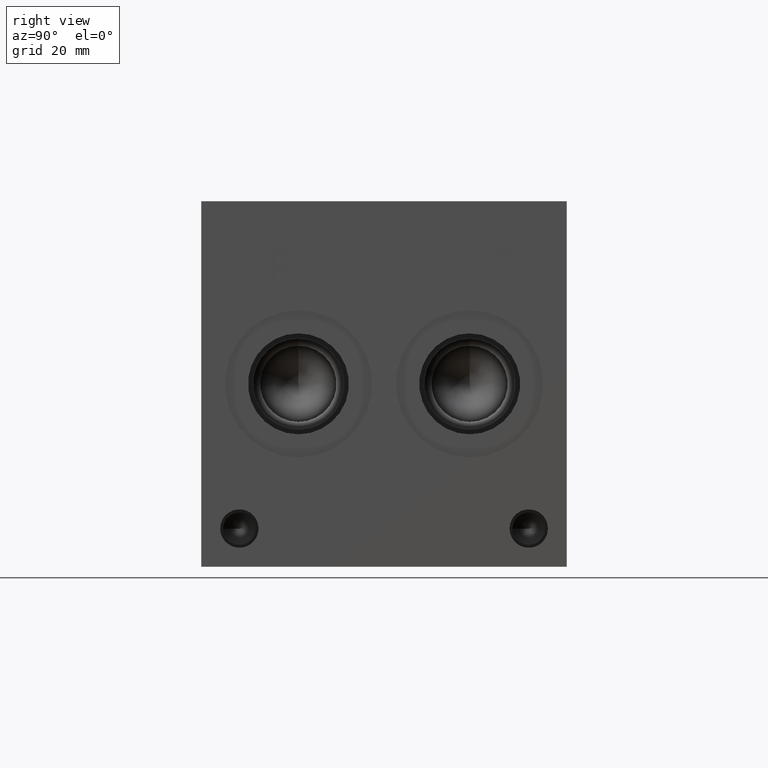
[diagram: clean part render]
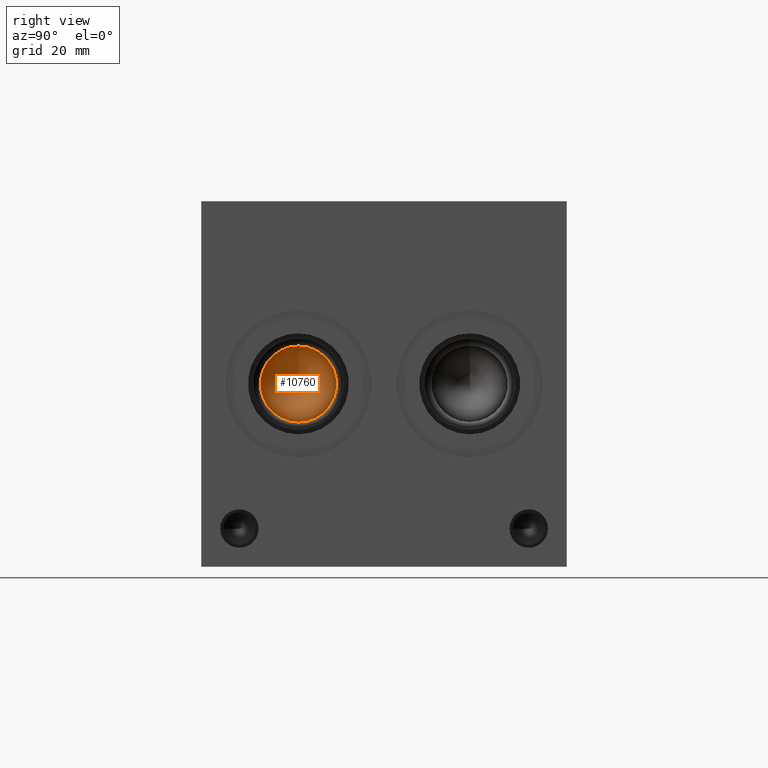
[diagram: same view with one face highlighted and labeled with its STEP entity id]
A machine part, right view. The second image highlights one B-rep face of the part: STEP entity #10760.
In plain terms, the highlighted conical surface has half-angle 60 deg.
Its self-contained STEP definition (entity closure, byte-faithful):
#17=CONICAL_SURFACE('',#11243,7.9375,1.04719754757701);
#143=CIRCLE('',#11242,7.9375);
#1256=FACE_OUTER_BOUND('',#1902,.T.);
#1902=EDGE_LOOP('',(#9085,#9086,#9087));
#3012=LINE('',#18148,#4052);
#4052=VECTOR('',#13107,7.9375);
#4993=VERTEX_POINT('',#18143);
#4994=VERTEX_POINT('',#18147);
#6393=EDGE_CURVE('',#4993,#4993,#143,.T.);
#6394=EDGE_CURVE('',#4993,#4994,#3012,.T.);
#9085=ORIENTED_EDGE('',*,*,#6393,.F.);
#9086=ORIENTED_EDGE('',*,*,#6394,.T.);
#9087=ORIENTED_EDGE('',*,*,#6394,.F.);
#10760=ADVANCED_FACE('',(#1256),#17,.F.);
#11242=AXIS2_PLACEMENT_3D('',#18145,#13103,#13104);
#11243=AXIS2_PLACEMENT_3D('',#18146,#13105,#13106);
#13103=DIRECTION('center_axis',(-1.,0.,0.));
#13104=DIRECTION('ref_axis',(0.,0.,1.));
#13105=DIRECTION('center_axis',(1.,0.,0.));
#13106=DIRECTION('ref_axis',(0.,0.,-1.));
#13107=DIRECTION('',(-0.500000003134659,-1.06057523650855E-16,-0.866025401974643));
#18143=CARTESIAN_POINT('',(83.2612,20.2438,46.0375));
#18145=CARTESIAN_POINT('Origin',(83.2612,20.2438,38.1));
#18146=CARTESIAN_POINT('Origin',(83.2612,20.2438,38.1));
#18147=CARTESIAN_POINT('',(78.6784822,20.2438,38.1));
#18148=CARTESIAN_POINT('',(83.2612,20.2438,46.0375));